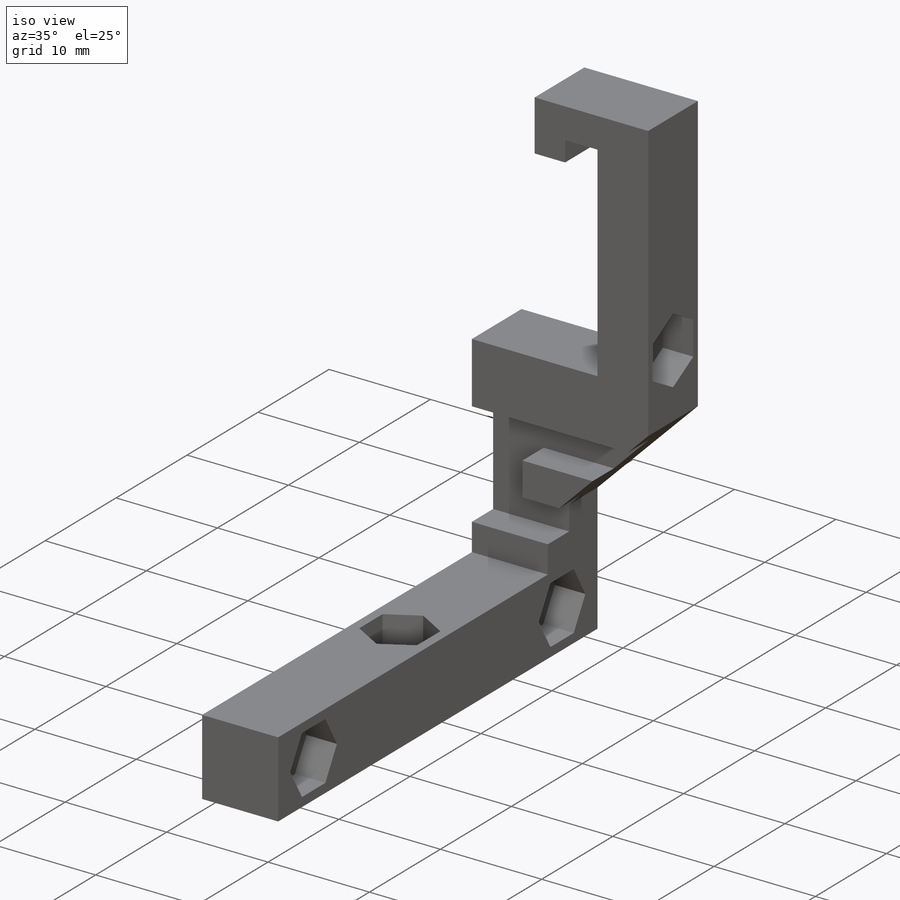
[diagram: iso view]
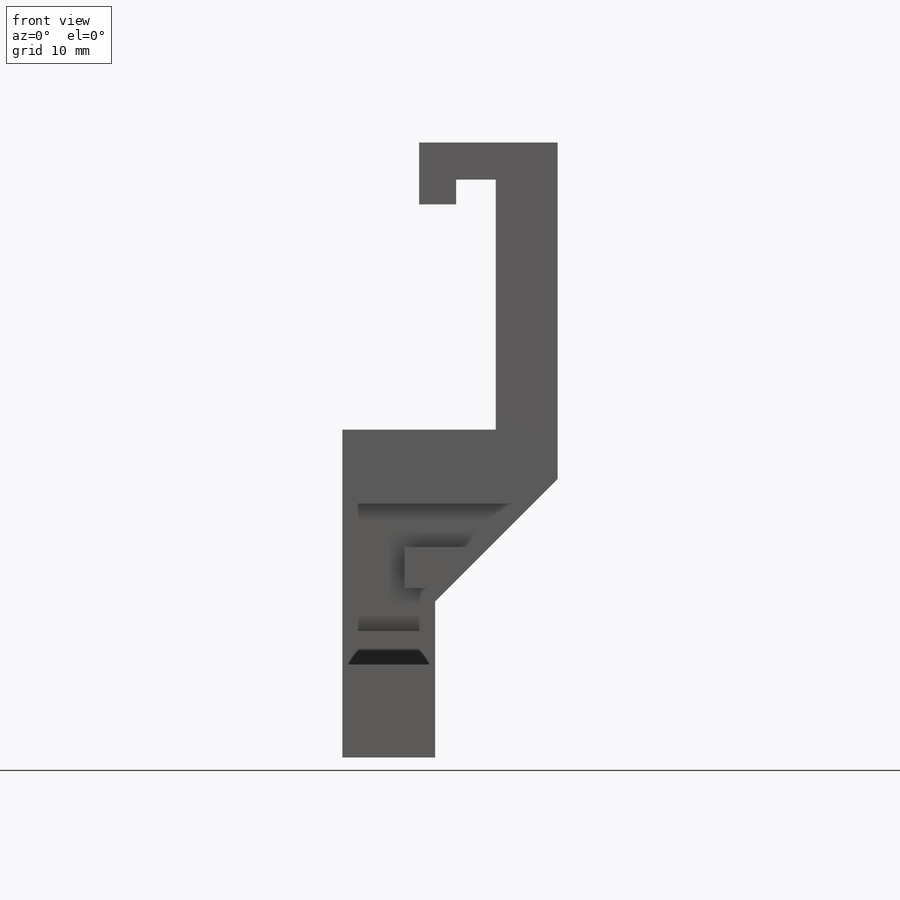
[diagram: front view]
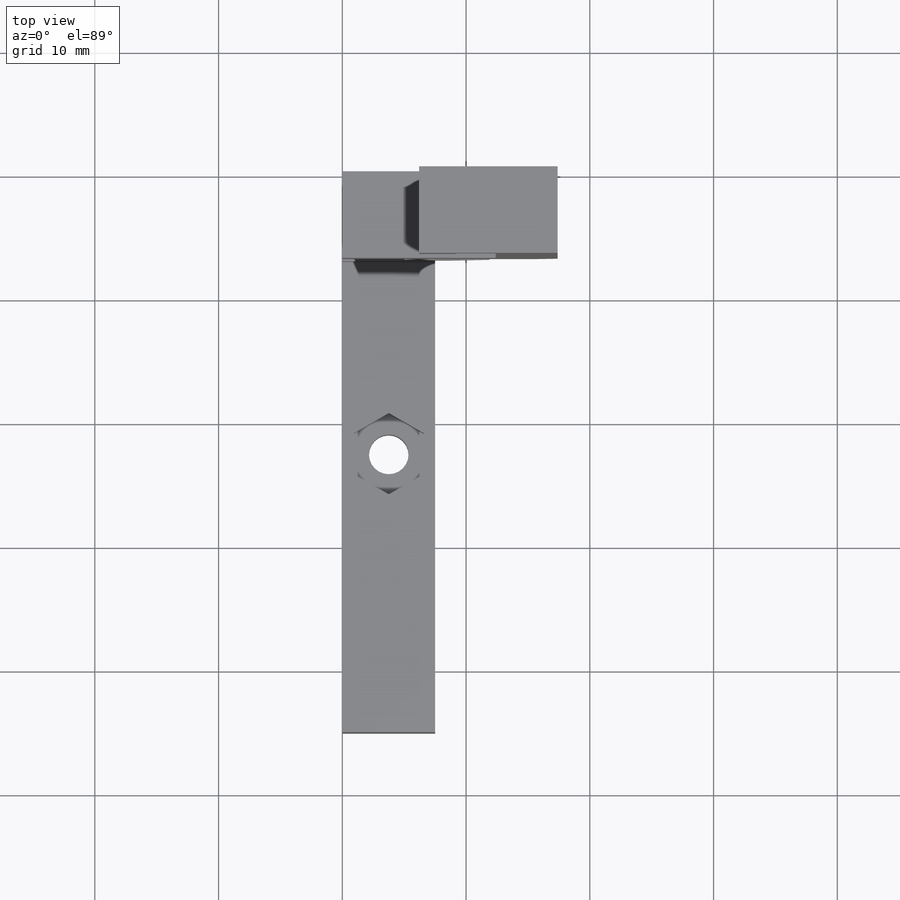
[diagram: top view]
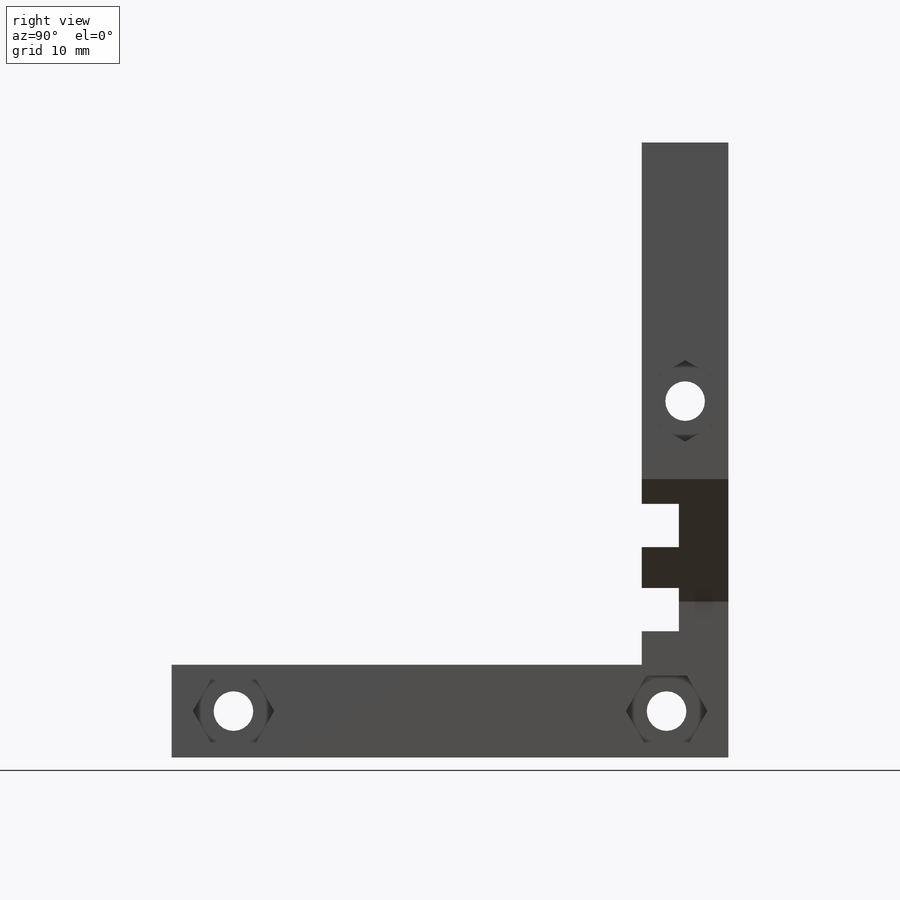
[diagram: right view]
SOLIDWORKS PART (.sldprt)
format: sldprt  version: not decoded by parser v0  size: 300,544 bytes
history: native  units: mm
features: sketch x10, cut_extrude x7, plane x4, extrude x3, material x1 (+13 scaffold rows collapsed)
feature tree (38):
  scaffold x13  (default folders/planes/origin — collapsed)
  material  "Material <sin especificar>"
  plane  "Alzado"
  plane  "Planta"
  plane  "Vista lateral"
  sketch  "Croquis1"  dims[c1.D1=7.5mm c1.D2=26.5mm c1.D3=12.4mm c1.D4=20.2mm c1.D5=3.2mm c1.D6=2.0mm c1.D7=3.0mm c1.D8=3.0mm c1.D9=5.0mm c1.D10=9.9mm c2.D10=135.0deg c2.D11=4.0mm]
  extrude  "Saliente-Extruir1"  Depth=4mm
  sketch  "Croquis2"  dims[D2=10.3mm D3=5.0mm D4=6.0mm D1=0.0mm]
  extrude  "Saliente-Extruir2"  Depth=3mm
  plane  "Plano1"  Offset=45mm
  sketch  "Croquis3"
  extrude  "Saliente-Extruir3"  [1 undecoded]
  sketch  "Croquis4"  dims[D1=3.2mm D2=2.3mm]
  cut_extrude  "Cortar-Extruir1"  [1 undecoded]
  sketch  "Croquis5"  dims[D1=5.7mm]
  cut_extrude  "Cortar-Extruir2"  Depth=3mm
  sketch  "Croquis6"  dims[D2=3.2mm D1=35.0mm]
  cut_extrude  "Cortar-Extruir3"  [1 undecoded]
  sketch  "Croquis7"  dims[D1=5.7mm]
  cut_extrude  "Cortar-Extruir4"  Depth=3mm
  sketch  "Croquis8"  dims[D1=3.2mm]
  cut_extrude  "Cortar-Extruir5"  [1 undecoded]
  sketch  "Croquis9"  dims[D1=5.7mm]
  cut_extrude  "Cortar-Extruir6"  Depth=3mm
  sketch  "Croquis10"  dims[D1=3.5mm D2=3.5mm]
  cut_extrude  "Cortar-Extruir7"  [1 undecoded]
decode coverage: 14 of 20 modeling features carry decoded parameters
note: 5 parameter values undecoded
summary: no parameter record found for 5 features
note: suppression state not decoded; provenance and decode notes live in map.json
